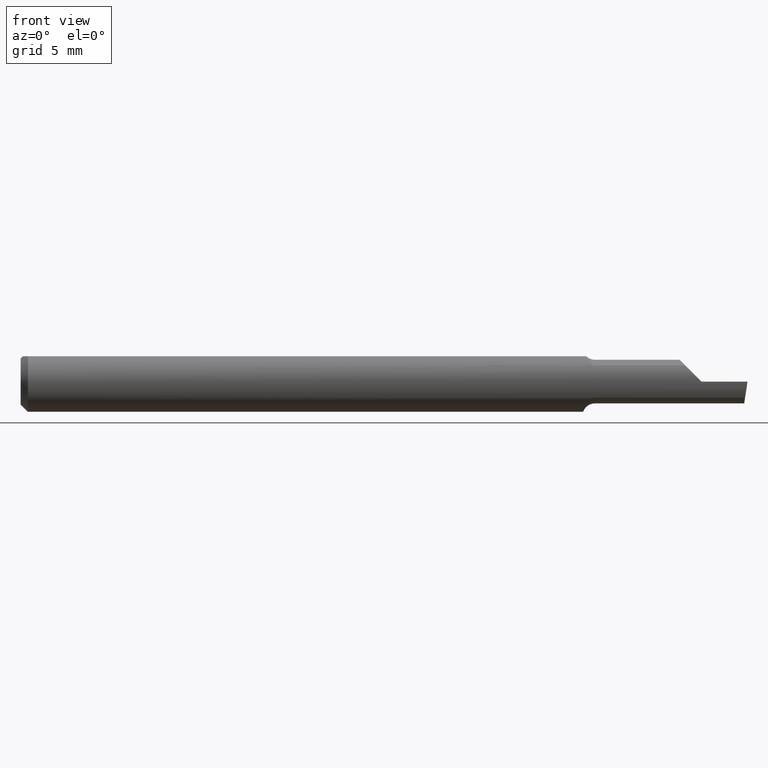
[diagram: clean part render]
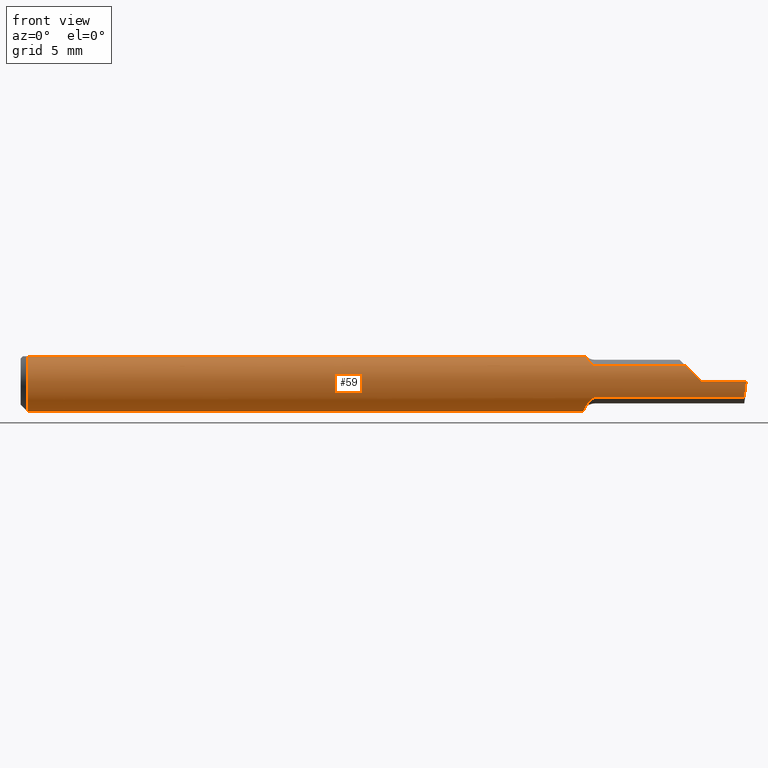
[diagram: same view with one face highlighted and labeled with its STEP entity id]
A machine part, front view. The second image highlights one B-rep face of the part: STEP entity #59.
In plain terms, the highlighted cylindrical surface (edge-blend (fillet) strip) has radius 1.5837 mm, axis along (-1, -0, -0).
Its self-contained STEP definition (entity closure, byte-faithful):
#3 = VECTOR ( 'NONE', #217, 39.37007874015748143 ) ;
#4 = CARTESIAN_POINT ( 'NONE',  ( 1.493589448587071988, -0.05267366071428577351, -0.03336177403790612644 ) ) ;
#7 = CARTESIAN_POINT ( 'NONE',  ( 1.175661082963681769, -0.04915643512136030902, 0.03841395140597858582 ) ) ;
#12 = CARTESIAN_POINT ( 'NONE',  ( 1.174327038483182095, -0.04799382633214954036, -0.03989142061000432171 ) ) ;
#21 = ORIENTED_EDGE ( 'NONE', *, *, #202, .T. ) ;
#36 = EDGE_CURVE ( 'NONE', #204, #113, #50, .T. ) ;
#39 = ORIENTED_EDGE ( 'NONE', *, *, #269, .F. ) ;
#50 =( BOUNDED_CURVE ( )  B_SPLINE_CURVE ( 3, ( #370, #379, #278, #373 ),
 .UNSPECIFIED., .F., .T. ) 
 B_SPLINE_CURVE_WITH_KNOTS ( ( 4, 4 ),
 ( 4.712388980384689674, 5.276982613231239405 ),
 .UNSPECIFIED. ) 
 CURVE ( )  GEOMETRIC_REPRESENTATION_ITEM ( )  RATIONAL_B_SPLINE_CURVE ( ( 1.000000000000000000, 0.9736121104788257874, 0.9736121104788257874, 1.000000000000000000 ) ) 
 REPRESENTATION_ITEM ( '' )  );
#53 = CARTESIAN_POINT ( 'NONE',  ( 1.167873522747513881, -0.03849383661596394307, 0.04935695859860204926 ) ) ;
#54 = VECTOR ( 'NONE', #395, 39.37007874015748143 ) ;
#59 = ADVANCED_FACE ( 'NONE', ( #118 ), #243, .T. ) ;
#64 = CARTESIAN_POINT ( 'NONE',  ( 1.169899083742320656, -0.04251446938472878273, 0.04588310374207921899 ) ) ;
#66 = CARTESIAN_POINT ( 'NONE',  ( 1.185000000000000275, -0.05267366071428582902, -0.03336177403790607787 ) ) ;
#69 = CARTESIAN_POINT ( 'NONE',  ( 1.177568494155622814, -0.05043275970182651419, -0.03668598949093547501 ) ) ;
#70 = CARTESIAN_POINT ( 'NONE',  ( 1.302500000000000213, -0.05267366071428577351, -0.03336177403790612644 ) ) ;
#74 = CARTESIAN_POINT ( 'NONE',  ( 1.160000000000000142, 0.0000000000000000000, 0.0000000000000000000 ) ) ;
#75 = CARTESIAN_POINT ( 'NONE',  ( 0.01500000000000000465, 0.0000000000000000000, 0.0000000000000000000 ) ) ;
#77 = ORIENTED_EDGE ( 'NONE', *, *, #407, .T. ) ;
#79 = CARTESIAN_POINT ( 'NONE',  ( 1.160000000000000142, 0.03386738844375224156, 0.05235000000000000070 ) ) ;
#86 = CARTESIAN_POINT ( 'NONE',  ( 1.493589448587071988, -0.05267366071428577351, -0.03336177403790612644 ) ) ;
#91 = EDGE_CURVE ( 'NONE', #569, #398, #551, .T. ) ;
#99 = B_SPLINE_CURVE_WITH_KNOTS ( 'NONE', 3,
 ( #331, #53, #64, #141, #7, #564, #231, #562, #459, #282 ),
 .UNSPECIFIED., .F., .F.,
 ( 4, 2, 2, 2, 4 ),
 ( 3.797231421928799144E-07, 0.0004333373953855902639, 0.0006498162315072863234, 0.0007580556495681309379, 0.0008662950676289754440 ),
 .UNSPECIFIED. ) ;
#102 = CARTESIAN_POINT ( 'NONE',  ( 1.495973035530413275, -0.06234999999999998183, -0.01189272970908758151 ) ) ;
#105 = AXIS2_PLACEMENT_3D ( 'NONE', #254, #439, #583 ) ;
#113 = VERTEX_POINT ( 'NONE', #471 ) ;
#118 = FACE_OUTER_BOUND ( 'NONE', #259, .T. ) ;
#121 = DIRECTION ( 'NONE',  ( -1.000000000000000000, -0.0000000000000000000, -0.0000000000000000000 ) ) ;
#123 = AXIS2_PLACEMENT_3D ( 'NONE', #186, #465, #565 ) ;
#126 = CARTESIAN_POINT ( 'NONE',  ( 1.160000000000000142, 0.01155624999999991728, -0.06126969549408176757 ) ) ;
#128 = DIRECTION ( 'NONE',  ( -1.000000000000000000, -0.0000000000000000000, -0.0000000000000000000 ) ) ;
#136 = CIRCLE ( 'NONE', #105, 0.06235000000000000264 ) ;
#141 = CARTESIAN_POINT ( 'NONE',  ( 1.174073837407041854, -0.04761084945882104735, 0.04033650601908238265 ) ) ;
#149 = CARTESIAN_POINT ( 'NONE',  ( 1.181592203943254704, -0.05228879390856551457, -0.03397671269166903374 ) ) ;
#152 = CARTESIAN_POINT ( 'NONE',  ( 0.0000000000000000000, 0.03386738844375223462, 0.05234999999999997988 ) ) ;
#155 = CARTESIAN_POINT ( 'NONE',  ( 1.172612635401776959, -0.04600867268841644236, -0.04219264322731255262 ) ) ;
#160 = VERTEX_POINT ( 'NONE', #434 ) ;
#164 = CARTESIAN_POINT ( 'NONE',  ( 0.01500000000000185039, -0.03386738844380016850, 0.05235000000000000070 ) ) ;
#166 = CARTESIAN_POINT ( 'NONE',  ( 2.249639673992788601E-32, -0.06234999999999999570, 1.836970198721030427E-16 ) ) ;
#172 = CARTESIAN_POINT ( 'NONE',  ( 1.497433779686218935, -0.06235000000000005121, 3.231995301756471648E-19 ) ) ;
#181 = CIRCLE ( 'NONE', #200, 0.06235000000000000264 ) ;
#186 = CARTESIAN_POINT ( 'NONE',  ( 0.0000000000000000000, 0.0000000000000000000, 0.0000000000000000000 ) ) ;
#189 = CARTESIAN_POINT ( 'NONE',  ( 1.165988988117221625, -0.03406974560157226273, -0.05264335079965581921 ) ) ;
#190 = LINE ( 'NONE', #152, #226 ) ;
#200 = AXIS2_PLACEMENT_3D ( 'NONE', #75, #121, #308 ) ;
#202 = EDGE_CURVE ( 'NONE', #219, #409, #190, .T. ) ;
#204 = VERTEX_POINT ( 'NONE', #572 ) ;
#208 = VECTOR ( 'NONE', #128, 39.37007874015748143 ) ;
#209 = EDGE_CURVE ( 'NONE', #219, #448, #136, .T. ) ;
#217 = DIRECTION ( 'NONE',  ( 1.000000000000000000, 5.691349986800549142E-18, 0.0000000000000000000 ) ) ;
#219 = VERTEX_POINT ( 'NONE', #247 ) ;
#222 = CARTESIAN_POINT ( 'NONE',  ( 0.01500000000000000465, 0.0000000000000000000, -0.06235000000000000264 ) ) ;
#226 = VECTOR ( 'NONE', #470, 39.37007874015748143 ) ;
#227 = ORIENTED_EDGE ( 'NONE', *, *, #334, .T. ) ;
#231 = CARTESIAN_POINT ( 'NONE',  ( 1.179654899318486549, -0.05157034440792585689, 0.03505133412385300767 ) ) ;
#243 = CYLINDRICAL_SURFACE ( 'NONE', #123, 0.06235000000000000264 ) ;
#244 = ORIENTED_EDGE ( 'NONE', *, *, #209, .F. ) ;
#246 = EDGE_CURVE ( 'NONE', #398, #409, #396, .T. ) ;
#247 = CARTESIAN_POINT ( 'NONE',  ( 0.01500000000000000465, 0.03386738844375223462, 0.05234999999999997988 ) ) ;
#254 = CARTESIAN_POINT ( 'NONE',  ( 0.01500000000000000465, 0.0000000000000000000, 0.0000000000000000000 ) ) ;
#258 = ORIENTED_EDGE ( 'NONE', *, *, #279, .F. ) ;
#259 = EDGE_LOOP ( 'NONE', ( #258, #431, #227, #545, #525, #378, #77, #39, #244, #21, #314, #264 ) ) ;
#264 = ORIENTED_EDGE ( 'NONE', *, *, #91, .F. ) ;
#269 = EDGE_CURVE ( 'NONE', #448, #318, #181, .T. ) ;
#275 = CARTESIAN_POINT ( 'NONE',  ( 1.166182189689074944, -0.03386738844375222074, 0.05235000000000000070 ) ) ;
#278 = CARTESIAN_POINT ( 'NONE',  ( 1.381685276638327631, -0.05903713403021959572, 0.02331472336167217385 ) ) ;
#279 = EDGE_CURVE ( 'NONE', #355, #569, #353, .T. ) ;
#282 = CARTESIAN_POINT ( 'NONE',  ( 1.185000000000000275, -0.05267366071428575963, 0.03336177403790613338 ) ) ;
#293 = CARTESIAN_POINT ( 'NONE',  ( 1.178775713346481790, -0.05116520334387895941, -0.03564627526859119599 ) ) ;
#298 = CARTESIAN_POINT ( 'NONE',  ( 1.168132745576696108, -0.03943215935316544268, -0.04868886658133510237 ) ) ;
#308 = DIRECTION ( 'NONE',  ( 0.0000000000000000000, 0.0000000000000000000, 1.000000000000000000 ) ) ;
#314 = ORIENTED_EDGE ( 'NONE', *, *, #246, .F. ) ;
#318 = VERTEX_POINT ( 'NONE', #164 ) ;
#327 = CARTESIAN_POINT ( 'NONE',  ( 1.185000000000000275, -0.05267366071428582902, -0.03336177403790607787 ) ) ;
#331 = CARTESIAN_POINT ( 'NONE',  ( 1.166182189689074944, -0.03386738844375222074, 0.05235000000000000070 ) ) ;
#334 = EDGE_CURVE ( 'NONE', #515, #204, #336, .T. ) ;
#335 = CARTESIAN_POINT ( 'NONE',  ( 1.161648092746324634, -0.01564147840104303244, -0.06074236086770341131 ) ) ;
#336 = LINE ( 'NONE', #166, #208 ) ;
#353 = LINE ( 'NONE', #70, #54 ) ;
#355 = VERTEX_POINT ( 'NONE', #86 ) ;
#358 = EDGE_CURVE ( 'NONE', #160, #113, #491, .T. ) ;
#366 = LINE ( 'NONE', #408, #597 ) ;
#370 = CARTESIAN_POINT ( 'NONE',  ( 1.405000000000000249, -0.06235000000000005121, 1.163414459189985436E-17 ) ) ;
#373 = CARTESIAN_POINT ( 'NONE',  ( 1.371638225962093838, -0.05267366071428578739, 0.03336177403790611951 ) ) ;
#378 = ORIENTED_EDGE ( 'NONE', *, *, #537, .F. ) ;
#379 = CARTESIAN_POINT ( 'NONE',  ( 1.393107270290912858, -0.06235000000000000264, 0.01189272970908752079 ) ) ;
#386 = CARTESIAN_POINT ( 'NONE',  ( 1.494656860756163885, -0.05903713403021957490, -0.02331472336167223977 ) ) ;
#388 = CARTESIAN_POINT ( 'NONE',  ( 1.162728993423048252, -0.02215482600002532249, -0.05866202889160989503 ) ) ;
#395 = DIRECTION ( 'NONE',  ( -1.000000000000000000, -5.691349986800549142E-18, -0.0000000000000000000 ) ) ;
#396 = CIRCLE ( 'NONE', #435, 0.06235000000000000264 ) ;
#398 = VERTEX_POINT ( 'NONE', #126 ) ;
#399 = DIRECTION ( 'NONE',  ( 0.0000000000000000000, 1.000000000000000000, 0.0000000000000000000 ) ) ;
#407 = EDGE_CURVE ( 'NONE', #489, #318, #366, .T. ) ;
#408 = CARTESIAN_POINT ( 'NONE',  ( 0.0000000000000000000, -0.03386738844375222768, 0.05234999999999997988 ) ) ;
#409 = VERTEX_POINT ( 'NONE', #79 ) ;
#430 = CARTESIAN_POINT ( 'NONE',  ( 1.159999999999995923, 0.004792881695547097053, -0.06254535345742003039 ) ) ;
#431 = ORIENTED_EDGE ( 'NONE', *, *, #566, .T. ) ;
#434 = CARTESIAN_POINT ( 'NONE',  ( 1.185000000000000275, -0.05267366071428575963, 0.03336177403790613338 ) ) ;
#435 = AXIS2_PLACEMENT_3D ( 'NONE', #74, #584, #399 ) ;
#439 = DIRECTION ( 'NONE',  ( -1.000000000000000000, -0.0000000000000000000, -0.0000000000000000000 ) ) ;
#448 = VERTEX_POINT ( 'NONE', #222 ) ;
#459 = CARTESIAN_POINT ( 'NONE',  ( 1.183537604150741718, -0.05267366071513945869, 0.03336177403655860019 ) ) ;
#465 = DIRECTION ( 'NONE',  ( -1.000000000000000000, -0.0000000000000000000, -0.0000000000000000000 ) ) ;
#468 = CARTESIAN_POINT ( 'NONE',  ( 1.160000000000000142, 0.01155624999999991728, -0.06126969549408176757 ) ) ;
#470 = DIRECTION ( 'NONE',  ( 1.000000000000000000, 0.0000000000000000000, 0.0000000000000000000 ) ) ;
#471 = CARTESIAN_POINT ( 'NONE',  ( 1.371638225962093838, -0.05267366071428578739, 0.03336177403790611951 ) ) ;
#489 = VERTEX_POINT ( 'NONE', #275 ) ;
#491 = LINE ( 'NONE', #542, #3 ) ;
#510 = CARTESIAN_POINT ( 'NONE',  ( 1.497433779686218935, -0.06235000000000005121, 3.231995301756471648E-19 ) ) ;
#515 = VERTEX_POINT ( 'NONE', #172 ) ;
#525 = ORIENTED_EDGE ( 'NONE', *, *, #358, .F. ) ;
#527 = CARTESIAN_POINT ( 'NONE',  ( 1.160276440363477324, -0.002103274276245847407, -0.06268864719924562012 ) ) ;
#537 = EDGE_CURVE ( 'NONE', #489, #160, #99, .T. ) ;
#542 = CARTESIAN_POINT ( 'NONE',  ( 1.302500000000000213, -0.05267366071428577351, 0.03336177403790612644 ) ) ;
#545 = ORIENTED_EDGE ( 'NONE', *, *, #36, .T. ) ;
#548 = DIRECTION ( 'NONE',  ( -1.000000000000000000, -0.0000000000000000000, -0.0000000000000000000 ) ) ;
#551 = B_SPLINE_CURVE_WITH_KNOTS ( 'NONE', 3,
 ( #66, #574, #149, #293, #69, #12, #155, #298, #189, #388, #335, #527, #430, #468 ),
 .UNSPECIFIED., .F., .F.,
 ( 4, 2, 2, 2, 2, 2, 4 ),
 ( 1.960001601931791046E-07, 0.0001315703184465667936, 0.0002629446367329404434, 0.0005256932733056875803, 0.001051190546451177734, 0.001576687819596668105, 0.002102185092742158475 ),
 .UNSPECIFIED. ) ;
#562 = CARTESIAN_POINT ( 'NONE',  ( 1.182134555967766953, -0.05240678568573015061, 0.03378794548805858639 ) ) ;
#564 = CARTESIAN_POINT ( 'NONE',  ( 1.178587721903973984, -0.05102224570557679223, 0.03585204334871004012 ) ) ;
#565 = DIRECTION ( 'NONE',  ( 0.0000000000000000000, 0.0000000000000000000, 1.000000000000000000 ) ) ;
#566 = EDGE_CURVE ( 'NONE', #355, #515, #589, .T. ) ;
#569 = VERTEX_POINT ( 'NONE', #327 ) ;
#572 = CARTESIAN_POINT ( 'NONE',  ( 1.405000000000000249, -0.06235000000000005121, 1.163414459189985436E-17 ) ) ;
#574 = CARTESIAN_POINT ( 'NONE',  ( 1.183240954672475143, -0.05267366071428580127, -0.03336177403790611257 ) ) ;
#583 = DIRECTION ( 'NONE',  ( 0.0000000000000000000, 0.0000000000000000000, 1.000000000000000000 ) ) ;
#584 = DIRECTION ( 'NONE',  ( 1.000000000000000000, 5.691349986800549142E-18, 0.0000000000000000000 ) ) ;
#589 =( BOUNDED_CURVE ( )  B_SPLINE_CURVE ( 3, ( #4, #386, #102, #510 ),
 .UNSPECIFIED., .F., .T. ) 
 B_SPLINE_CURVE_WITH_KNOTS ( ( 4, 4 ),
 ( 0.7961532496683315641, 1.360746882514881850 ),
 .UNSPECIFIED. ) 
 CURVE ( )  GEOMETRIC_REPRESENTATION_ITEM ( )  RATIONAL_B_SPLINE_CURVE ( ( 1.000000000000000000, 0.9736121104788257874, 0.9736121104788257874, 1.000000000000000000 ) ) 
 REPRESENTATION_ITEM ( '' )  );
#597 = VECTOR ( 'NONE', #548, 39.37007874015748143 ) ;